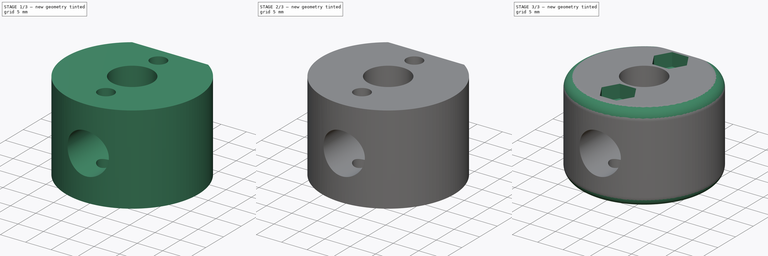
[diagram: build sequence overview — one tinted view per stage of 3, left to right]
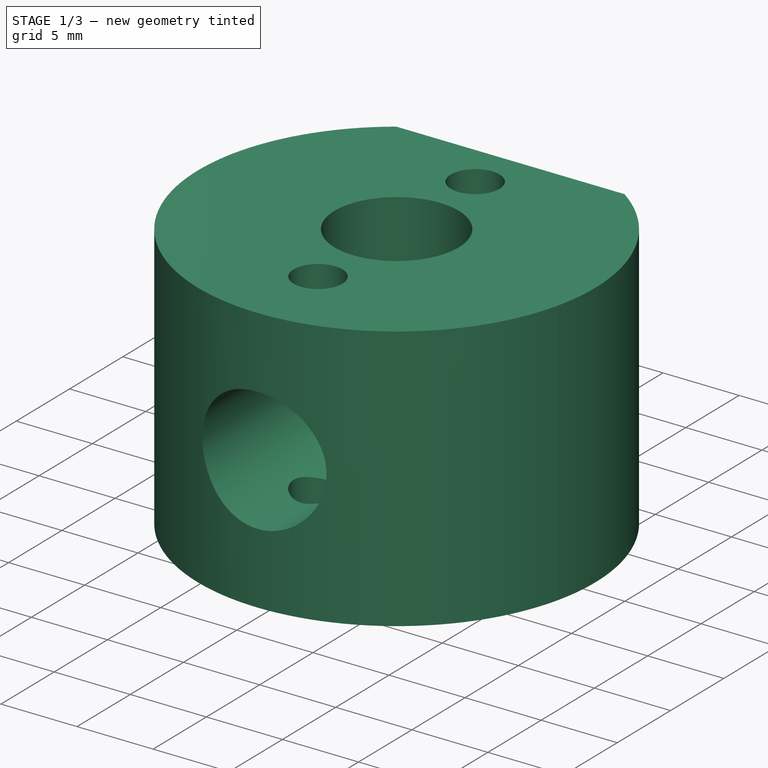
[diagram: stage 1 of 3 — iso view after this stage's code; geometry added in this stage tinted green]
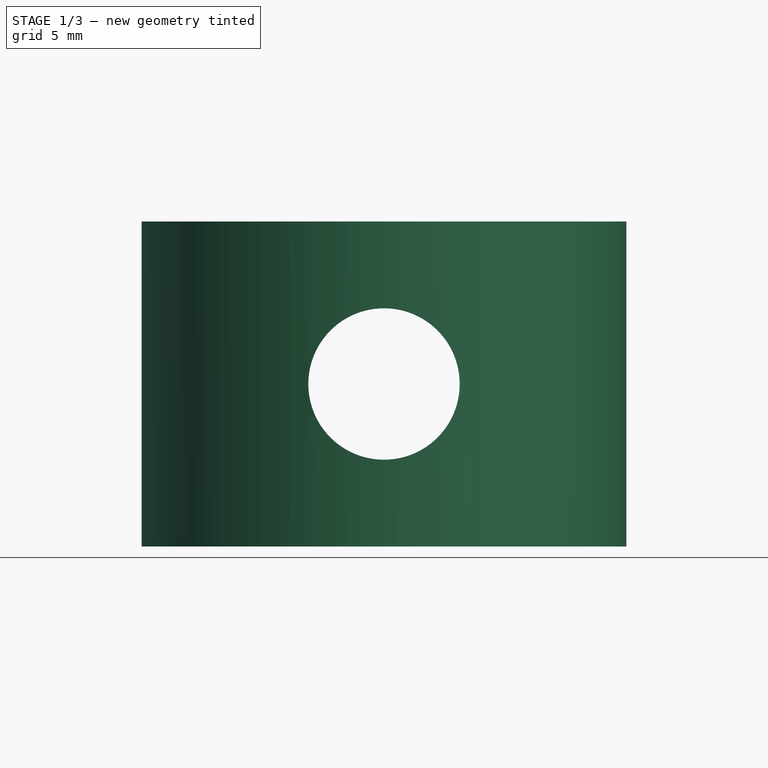
[diagram: stage 1 of 3 — front view after this stage's code; geometry added in this stage tinted green]
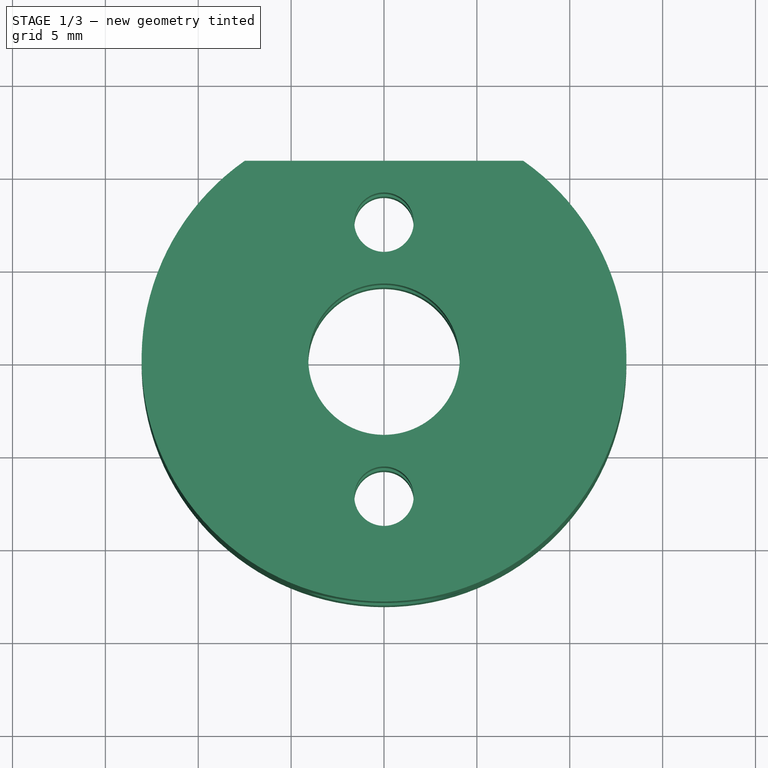
[diagram: stage 1 of 3 — top view after this stage's code; geometry added in this stage tinted green]
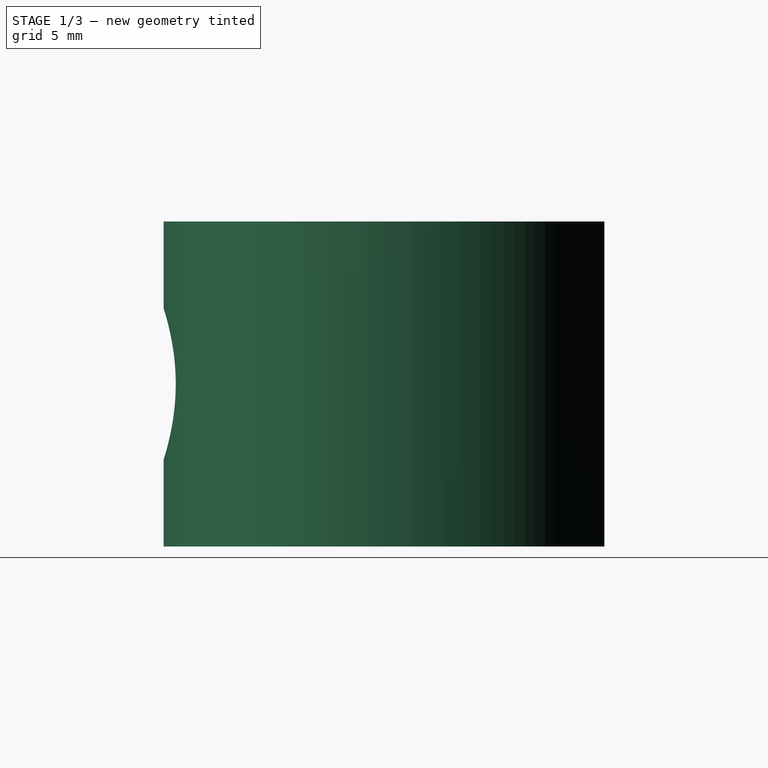
[diagram: stage 1 of 3 — right view after this stage's code; geometry added in this stage tinted green]
FCSTD DOCUMENT  (FreeCAD 0.20R29603 (Git))
Label: haste-M8-ponta-superior
License: All rights reserved
LicenseURL: http://en.wikipedia.org/wiki/All_rights_reserved
objects: Sketcher::SketchObject×4, PartDesign::Pocket×3, PartDesign::Pad×1, PartDesign::Fillet×1, PartDesign::Body×1
note: 15 computed .brp shape members not serialized (recipe doc carries the construction recipe); baked Part::Feature solids carry a one-line shape summary decoded from their .brp

FEATURE [Sketcher::SketchObject] Sketch
  FullyConstrained = true
  MapMode = 5
  Support = -> [XY_Plane]
  sketch-geometry (9):
    g0: ArcOfCircle CenterX=0 CenterY=0 CenterZ=0 NormalX=0 NormalY=0 NormalZ=1 AngleXU=0 Radius=13.05 StartAngle=2.18305 EndAngle=7.24173
    g1: LineSegment StartX=-7.5 StartY=10.6795 StartZ=0 EndX=7.5 EndY=10.6795 EndZ=0
    g2: Circle CenterX=0 CenterY=7.37727 CenterZ=0 NormalX=0 NormalY=0 NormalZ=1 AngleXU=0 Radius=1.6
    g3: Circle CenterX=0 CenterY=-7.37727 CenterZ=0 NormalX=0 NormalY=0 NormalZ=1 AngleXU=0 Radius=1.6
    g4: LineSegment StartX=0 StartY=7.37727 StartZ=0 EndX=0 EndY=0 EndZ=0
    g5: LineSegment StartX=0 StartY=0 StartZ=0 EndX=0 EndY=-7.37727 EndZ=0
    g6: Circle CenterX=0 CenterY=0 CenterZ=0 NormalX=0 NormalY=0 NormalZ=1 AngleXU=0 Radius=4.075
    g7: LineSegment StartX=0 StartY=4.075 StartZ=0 EndX=0 EndY=7.37727 EndZ=0
    g8: LineSegment StartX=0 StartY=10.6795 StartZ=0 EndX=0 EndY=7.37727 EndZ=0
  constraints (24):
    c: Horizontal(g1)
    c: Diameter(g0) = 26.1
    c: Coincident(g0,g-1)
    c: DistanceX(g1,g1) = 15
    c: PointOnObject(g2,g-2)
    c: PointOnObject(g3,g-2)
    c: Coincident(g0,g1)
    c: Coincident(g0,g1)
    c: Equal(g3,g2)
    c: Coincident(g4,g2)
    c: Coincident(g5,g4)
    c: Coincident(g5,g3)
    c: Equal(g5,g4)
    c: Coincident(g4,g0)
    c: Radius(g2) = 1.6
    c: Coincident(g6,g0)
    c: Diameter(g6) = 8.15
    c: Coincident(g8,g7)
    c: PointOnObject(g8,g1)
    c: PointOnObject(g8,g-2)
    c: PointOnObject(g7,g6)
    c: PointOnObject(g7,g4)
    c: Equal(g7,g8)
    c: Coincident(g7,g2)
FEATURE [PartDesign::Pad] Pad
  Direction = (0,0,1)
  Length = 17.5
  Length2 = 10
  Profile = -> Sketch
  ReferenceAxis = -> Sketch [N_Axis]
  Type = 0
FEATURE [Sketcher::SketchObject] Sketch001
  ExternalGeometry = -> [Pad]
  FullyConstrained = true
  MapMode = 5
  Placement = pos=(0,10.6795,0) rot=(0,0.707107,0.707107;3.14159rad)
  Support = -> [Pad]
  sketch-geometry (2):
    g0: Circle CenterX=0 CenterY=8.75 CenterZ=0 NormalX=0 NormalY=0 NormalZ=1 AngleXU=0 Radius=4.075
    g1: LineSegment StartX=-7.5 StartY=17.5 StartZ=0 EndX=7.5 EndY=0 EndZ=0
  constraints (5):
    c: PointOnObject(g0,g-2)
    c: Coincident(g1,g-3)
    c: Coincident(g1,g-4)
    c: PointOnObject(g0,g1)
    c: Diameter(g0) = 8.15
FEATURE [PartDesign::Pocket] Pocket
  BaseFeature = -> Pad
  Direction = (0,-1,2e-16)
  Length = 5
  Length2 = 5
  Profile = -> Sketch001
  ReferenceAxis = -> Sketch001 [N_Axis]
  Type = 1
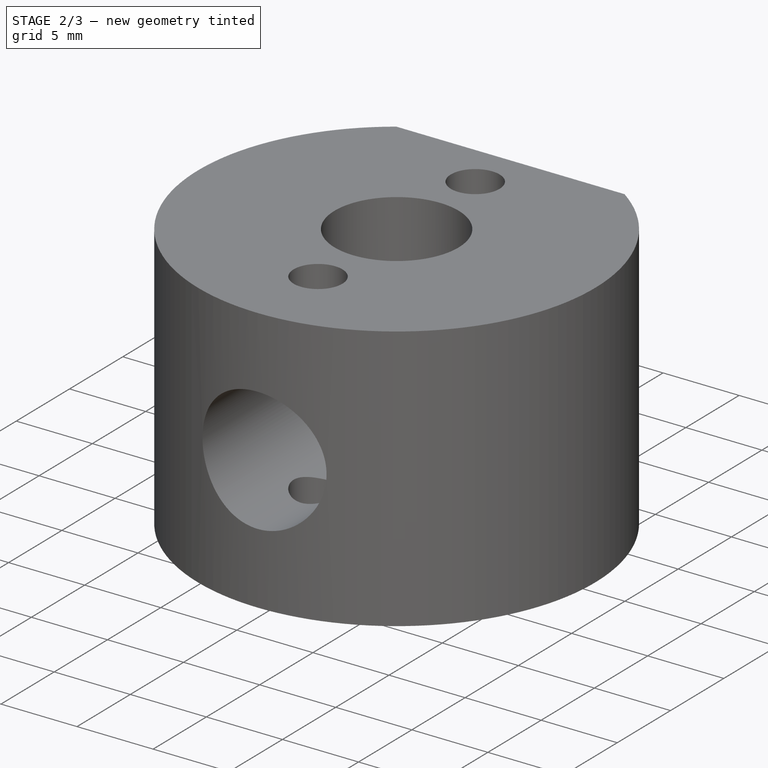
[diagram: stage 2 of 3 — iso view after this stage's code; geometry added in this stage tinted green]
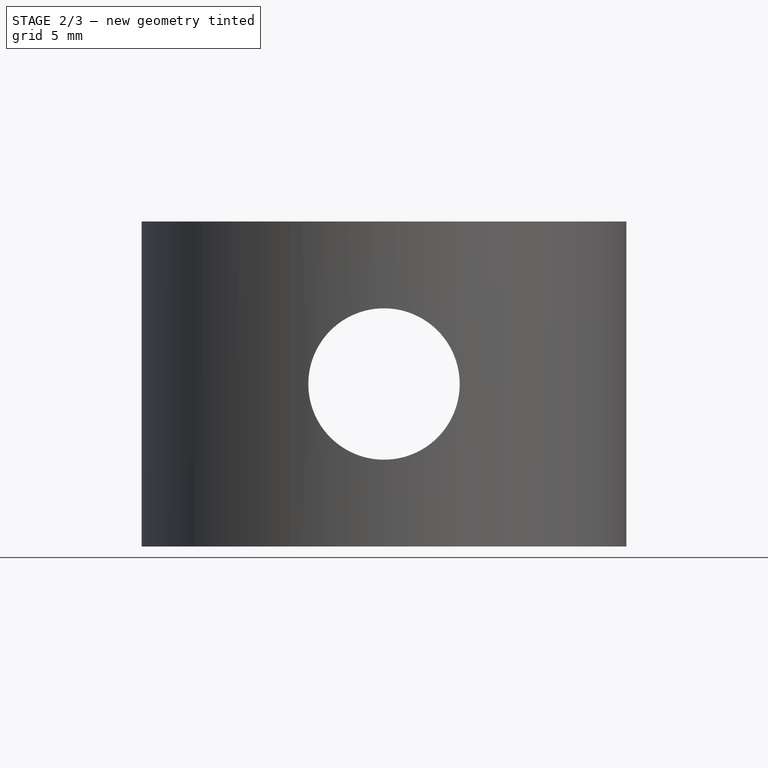
[diagram: stage 2 of 3 — front view after this stage's code; geometry added in this stage tinted green]
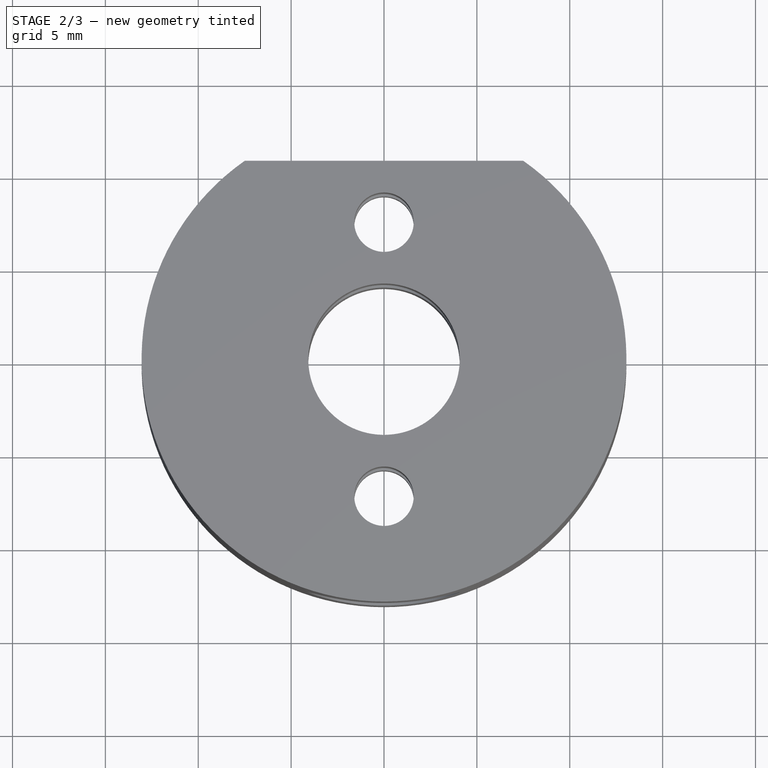
[diagram: stage 2 of 3 — top view after this stage's code; geometry added in this stage tinted green]
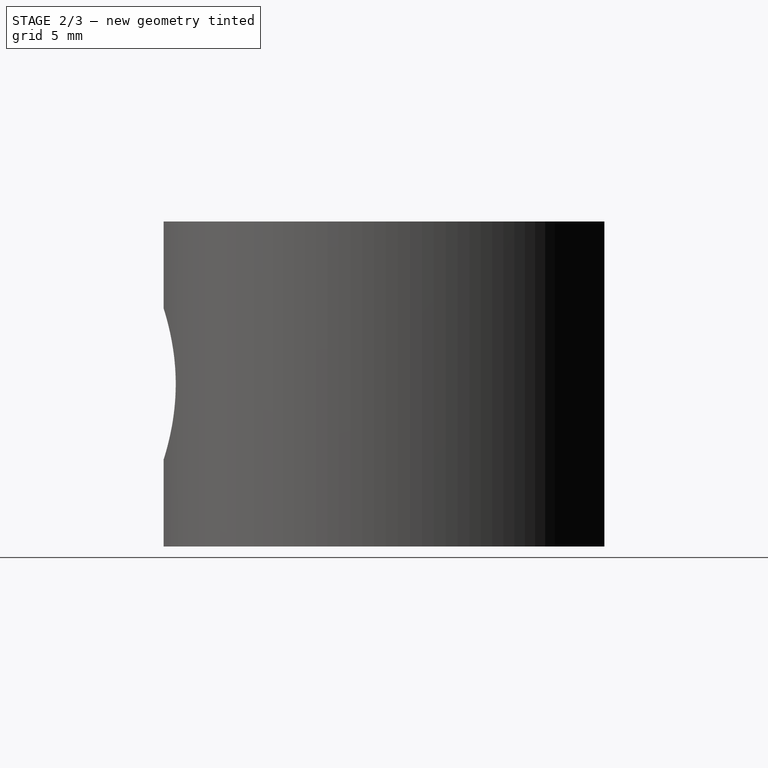
[diagram: stage 2 of 3 — right view after this stage's code; geometry added in this stage tinted green]
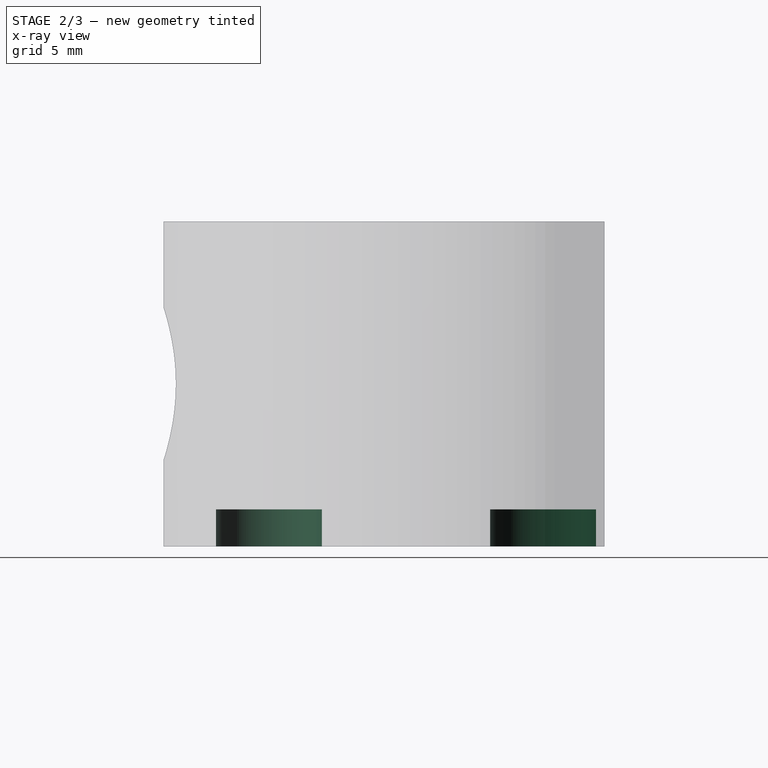
[diagram: stage 2 of 3 — x-ray composite at the right view; earlier geometry ghosted, this stage's added geometry solid]
FEATURE [Sketcher::SketchObject] Sketch002
  ExternalGeometry = -> [Pocket]
  FullyConstrained = true
  MapMode = 5
  Placement = pos=(0,0,0) rot=(1,0,0;3.14159rad)
  Support = -> [Pocket]
  sketch-geometry (2):
    g0: Circle CenterX=0 CenterY=7.37727 CenterZ=0 NormalX=0 NormalY=0 NormalZ=1 AngleXU=0 Radius=2.85
    g1: Circle CenterX=0 CenterY=-7.37727 CenterZ=0 NormalX=0 NormalY=0 NormalZ=1 AngleXU=0 Radius=2.85
  constraints (4):
    c: Coincident(g0,g-4)
    c: Coincident(g1,g-5)
    c: Diameter(g0) = 5.7
    c: Equal(g0,g1)
FEATURE [PartDesign::Pocket] Pocket001
  BaseFeature = -> Pocket
  Direction = (0,0,1)
  Length = 2
  Length2 = 5
  Profile = -> Sketch002
  ReferenceAxis = -> Sketch002 [N_Axis]
  Type = 0
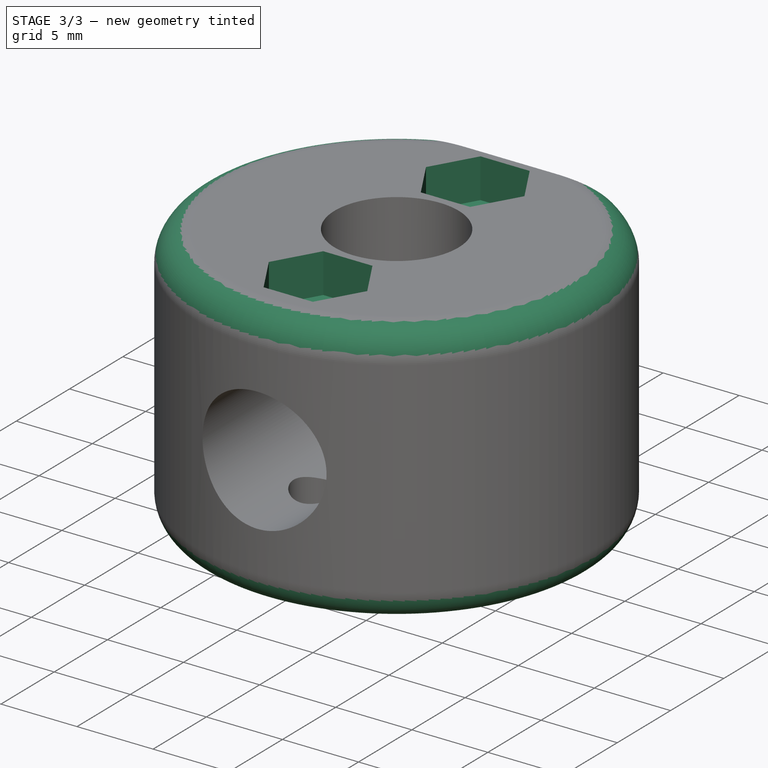
[diagram: stage 3 of 3 — iso view after this stage's code; geometry added in this stage tinted green]
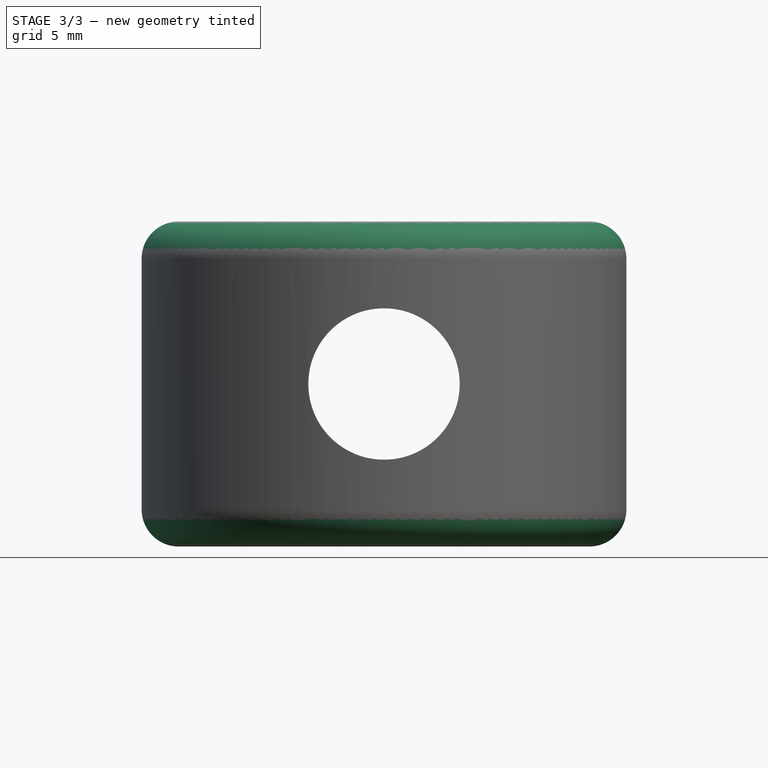
[diagram: stage 3 of 3 — front view after this stage's code; geometry added in this stage tinted green]
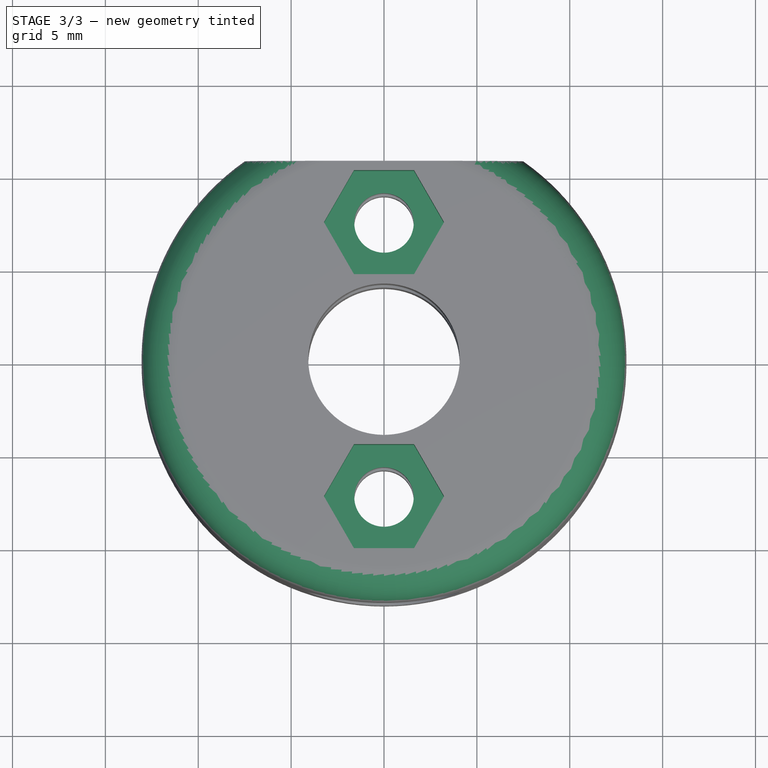
[diagram: stage 3 of 3 — top view after this stage's code; geometry added in this stage tinted green]
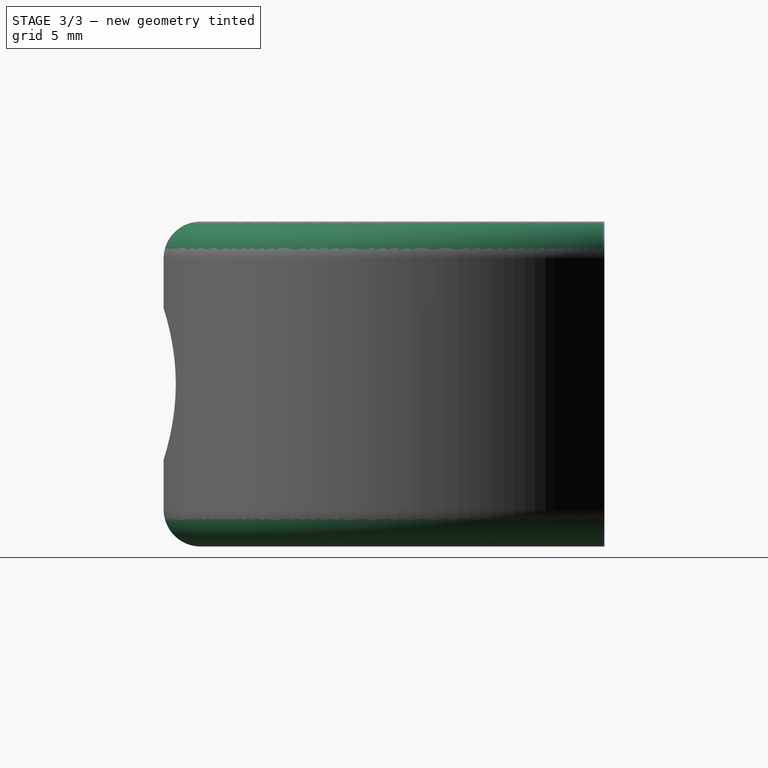
[diagram: stage 3 of 3 — right view after this stage's code; geometry added in this stage tinted green]
FEATURE [Sketcher::SketchObject] Sketch003
  ExternalGeometry = -> [Pocket001]
  FullyConstrained = true
  MapMode = 5
  Placement = pos=(0,0,17.5) rot=(0,0,1;0rad)
  Support = -> [Pocket001]
  sketch-geometry (14):
    g0: LineSegment StartX=1.61658 StartY=10.1773 StartZ=0 EndX=-1.61658 EndY=10.1773 EndZ=0
    g1: LineSegment StartX=-1.61658 StartY=10.1773 StartZ=0 EndX=-3.23316 EndY=7.37727 EndZ=0
    g2: LineSegment StartX=-3.23316 StartY=7.37727 StartZ=0 EndX=-1.61658 EndY=4.57727 EndZ=0
    g3: LineSegment StartX=-1.61658 StartY=4.57727 StartZ=0 EndX=1.61658 EndY=4.57727 EndZ=0
    g4: LineSegment StartX=1.61658 StartY=4.57727 StartZ=0 EndX=3.23316 EndY=7.37727 EndZ=0
    g5: LineSegment StartX=3.23316 StartY=7.37727 StartZ=0 EndX=1.61658 EndY=10.1773 EndZ=0
    g6: Circle CenterX=0 CenterY=7.37727 CenterZ=0 NormalX=0 NormalY=0 NormalZ=1 AngleXU=0 Radius=3.23316
    g7: LineSegment StartX=3.23316 StartY=-7.37727 StartZ=0 EndX=1.61658 EndY=-4.57727 EndZ=0
    g8: LineSegment StartX=1.61658 StartY=-4.57727 StartZ=0 EndX=-1.61658 EndY=-4.57727 EndZ=0
    g9: LineSegment StartX=-1.61658 StartY=-4.57727 StartZ=0 EndX=-3.23316 EndY=-7.37727 EndZ=0
    g10: LineSegment StartX=-3.23316 StartY=-7.37727 StartZ=0 EndX=-1.61658 EndY=-10.1773 EndZ=0
    g11: LineSegment StartX=-1.61658 StartY=-10.1773 StartZ=0 EndX=1.61658 EndY=-10.1773 EndZ=0
    g12: LineSegment StartX=1.61658 StartY=-10.1773 StartZ=0 EndX=3.23316 EndY=-7.37727 EndZ=0
    g13: Circle CenterX=0 CenterY=-7.37727 CenterZ=0 NormalX=0 NormalY=0 NormalZ=1 AngleXU=0 Radius=3.23316
  constraints (32):
    c: Coincident(g0,g1)
    c: Coincident(g1,g2)
    c: Coincident(g2,g3)
    c: Coincident(g3,g4)
    c: Coincident(g4,g5)
    c: Coincident(g5,g0)
    c: Equal(g0, g1-g5) x5
    c: PointOnObject(g0,g6)
    c: PointOnObject(g1,g6)
    c: PointOnObject(g2,g6)
    c: PointOnObject(g3,g6)
    c: PointOnObject(g4,g6)
    c: PointOnObject(g5,g6)
    c: Coincident(g6,g-4)
    c: Horizontal(g0)
    c: DistanceY(g2,g0) = 5.6
    c: Coincident(g7,g8)
    c: Coincident(g8,g9)
    c: Coincident(g9,g10)
    c: Coincident(g10,g11)
    c: Coincident(g11,g12)
    c: Coincident(g12,g7)
    c: Equal(g7, g8-g12) x5
    c: PointOnObject(g7,g13)
    c: PointOnObject(g8,g13)
    c: PointOnObject(g9,g13)
    c: PointOnObject(g10,g13)
    c: PointOnObject(g11,g13)
    c: PointOnObject(g12,g13)
    c: Coincident(g13,g-5)
    c: Horizontal(g8)
    c: Equal(g13,g6)
FEATURE [PartDesign::Pocket] Pocket002
  BaseFeature = -> Pocket001
  Direction = (0,0,-1)
  Length = 2.6
  Length2 = 5
  Profile = -> Sketch003
  ReferenceAxis = -> Sketch003 [N_Axis]
  Type = 0
FEATURE [PartDesign::Fillet] Fillet
  Base = -> Pocket002 [Edge2,Edge3]
  BaseFeature = -> Pocket002
  Radius = 2
  SupportTransform = false
  UseAllEdges = false
FEATURE [PartDesign::Body] Body
  Group = -> [Sketch,Pad,Sketch001,Pocket,Sketch002,Pocket001,Sketch003,Pocket002,Fillet]
  Origin = -> Origin
  Tip = -> Fillet
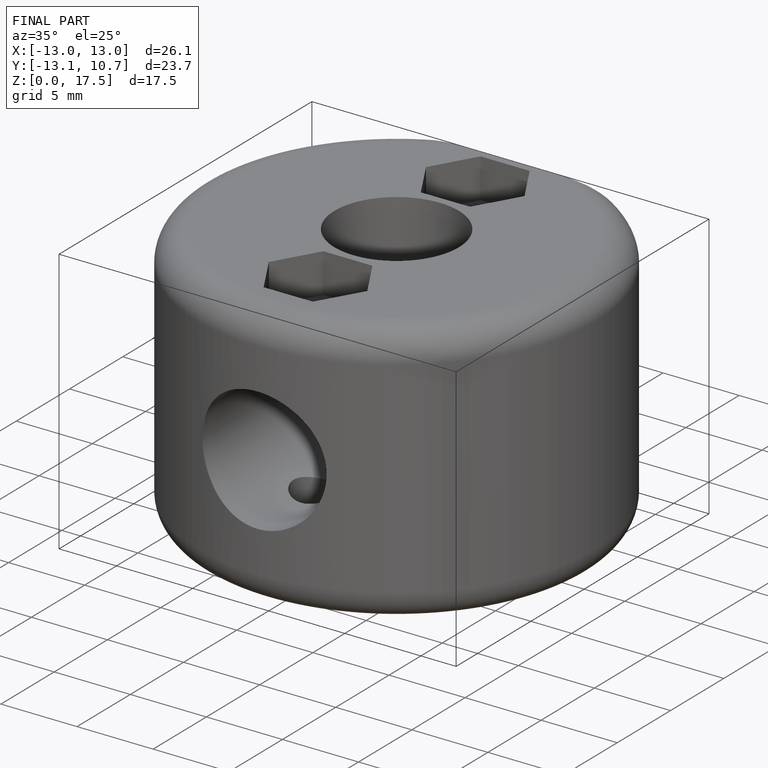
[diagram: finished part — iso view with bounding-box wireframe]
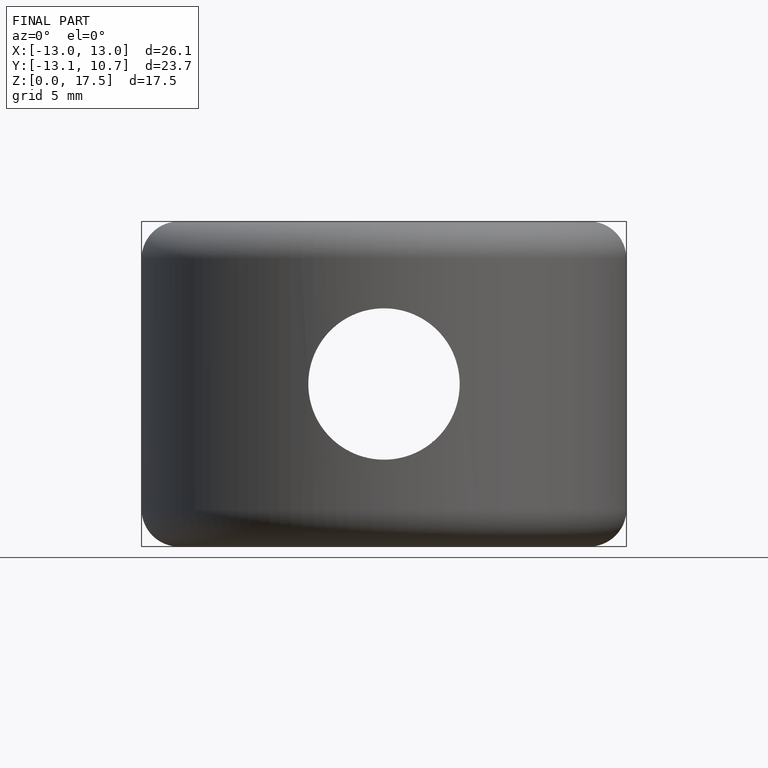
[diagram: finished part — front view with bounding-box wireframe]
